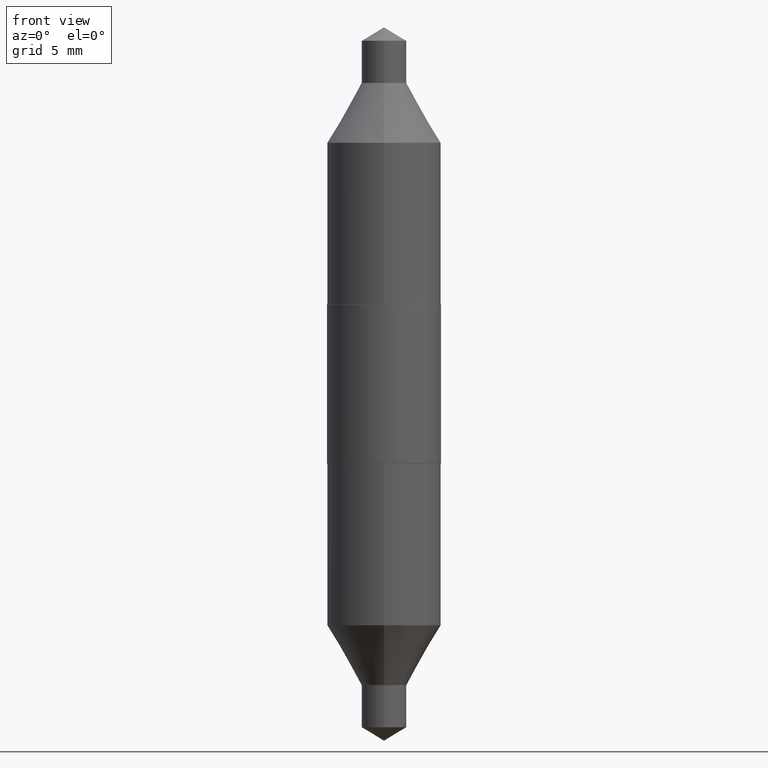
[diagram: clean part render]
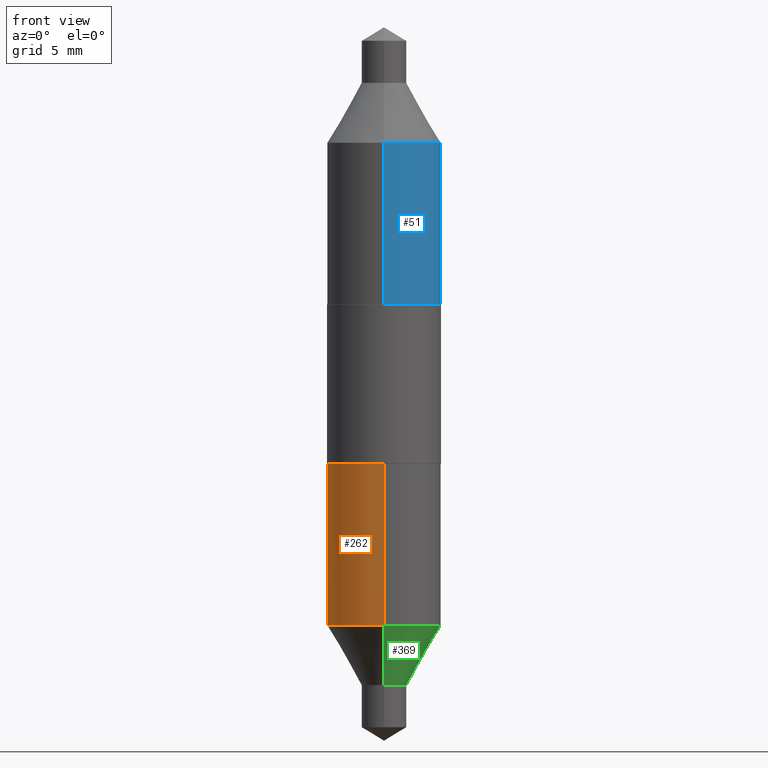
[diagram: same view with three faces highlighted in distinct colors, each labeled with its STEP entity id]
A machine part, front view with three faces highlighted in distinct colors.
Their STEP definitions:

[orange] entity #262 — the highlighted cylindrical surface (partial cylindrical patch) has radius 4.0005 mm, axis along (-0, 0, 1).
#1 = DIRECTION ( 'NONE',  ( -6.982962677686264344E-15, -1.000000000000000000, 3.469013325287952504E-15 ) ) ;
#10 = CARTESIAN_POINT ( 'NONE',  ( 1.119104808822163125E-15, 0.1574999999999992795, -0.2200000000000005285 ) ) ;
#11 = VERTEX_POINT ( 'NONE', #312 ) ;
#29 = DIRECTION ( 'NONE',  ( -2.432613365236688124E-29, 3.509891061967582916E-15, 1.000000000000000000 ) ) ;
#35 = VECTOR ( 'NONE', #477, 39.37007874015748143 ) ;
#57 = VERTEX_POINT ( 'NONE', #154 ) ;
#68 = CARTESIAN_POINT ( 'NONE',  ( 5.380031373607300737E-30, -7.681258945454921386E-16, -0.2200000000000000011 ) ) ;
#77 = AXIS2_PLACEMENT_3D ( 'NONE', #108, #490, #1 ) ;
#100 = FACE_OUTER_BOUND ( 'NONE', #597, .T. ) ;
#108 = CARTESIAN_POINT ( 'NONE',  ( 1.623165560573778972E-29, -2.333850207520305882E-15, -0.6660891478771698848 ) ) ;
#154 = CARTESIAN_POINT ( 'NONE',  ( -1.099816621735581367E-15, -0.1575000000000007505, -0.2199999999999994738 ) ) ;
#179 = EDGE_CURVE ( 'NONE', #617, #57, #627, .T. ) ;
#182 = ORIENTED_EDGE ( 'NONE', *, *, #307, .F. ) ;
#212 = DIRECTION ( 'NONE',  ( -2.432613365236688124E-29, 3.509891061967582916E-15, 1.000000000000000000 ) ) ;
#214 = CIRCLE ( 'NONE', #77, 0.1575000000000000289 ) ;
#223 = VERTEX_POINT ( 'NONE', #661 ) ;
#240 = ORIENTED_EDGE ( 'NONE', *, *, #403, .F. ) ;
#262 = ADVANCED_FACE ( 'NONE', ( #100 ), #313, .T. ) ;
#278 = DIRECTION ( 'NONE',  ( -6.982962677686264344E-15, -1.000000000000000000, 3.469013325287953293E-15 ) ) ;
#296 = ORIENTED_EDGE ( 'NONE', *, *, #536, .T. ) ;
#307 = EDGE_CURVE ( 'NONE', #223, #11, #504, .T. ) ;
#312 = CARTESIAN_POINT ( 'NONE',  ( 1.119104808822174169E-15, 0.1574999999999992517, -0.2200000000000005562 ) ) ;
#313 = CYLINDRICAL_SURFACE ( 'NONE', #662, 0.1575000000000000289 ) ;
#338 = DIRECTION ( 'NONE',  ( -2.432613365236688124E-29, 3.509891061967582916E-15, 1.000000000000000000 ) ) ;
#350 = ORIENTED_EDGE ( 'NONE', *, *, #179, .T. ) ;
#403 = EDGE_CURVE ( 'NONE', #11, #57, #608, .T. ) ;
#429 = CARTESIAN_POINT ( 'NONE',  ( -1.099816621735581564E-15, -0.1575000000000007783, -0.2199999999999994182 ) ) ;
#454 = AXIS2_PLACEMENT_3D ( 'NONE', #68, #29, #278 ) ;
#477 = DIRECTION ( 'NONE',  ( -2.432613365236688124E-29, 3.509891061967582916E-15, 1.000000000000000000 ) ) ;
#490 = DIRECTION ( 'NONE',  ( -2.432613365236688124E-29, 3.509891061967582916E-15, 1.000000000000000000 ) ) ;
#504 = LINE ( 'NONE', #10, #556 ) ;
#535 = CARTESIAN_POINT ( 'NONE',  ( 5.380031373607299336E-30, -7.681258945454920400E-16, -0.2199999999999999734 ) ) ;
#536 = EDGE_CURVE ( 'NONE', #223, #617, #214, .T. ) ;
#556 = VECTOR ( 'NONE', #338, 39.37007874015748143 ) ;
#597 = EDGE_LOOP ( 'NONE', ( #182, #296, #350, #240 ) ) ;
#601 = DIRECTION ( 'NONE',  ( -6.982962677686264344E-15, -1.000000000000000000, 3.469013325287952504E-15 ) ) ;
#608 = CIRCLE ( 'NONE', #454, 0.1575000000000000011 ) ;
#617 = VERTEX_POINT ( 'NONE', #688 ) ;
#627 = LINE ( 'NONE', #429, #35 ) ;
#661 = CARTESIAN_POINT ( 'NONE',  ( 1.119104808822168647E-15, 0.1574999999999976974, -0.6660891478771703289 ) ) ;
#662 = AXIS2_PLACEMENT_3D ( 'NONE', #535, #212, #601 ) ;
#688 = CARTESIAN_POINT ( 'NONE',  ( -1.099816621735570717E-15, -0.1575000000000023603, -0.6660891478771693297 ) ) ;

[blue] entity #51 — the highlighted cylindrical surface (partial cylindrical patch) has radius 4.0005 mm, axis along (0, -0, -1).
#5 = LINE ( 'NONE', #665, #392 ) ;
#40 = CYLINDRICAL_SURFACE ( 'NONE', #518, 0.1575000000000000289 ) ;
#51 = ADVANCED_FACE ( 'NONE', ( #427 ), #40, .T. ) ;
#59 = CARTESIAN_POINT ( 'NONE',  ( -1.099816621735592016E-15, -0.1574999999999992517, 0.2200000000000005562 ) ) ;
#89 = CARTESIAN_POINT ( 'NONE',  ( -5.380031373607300737E-30, 7.681258945454921386E-16, 0.2200000000000000011 ) ) ;
#93 = DIRECTION ( 'NONE',  ( -2.458324247133585070E-29, 3.473071615718708250E-15, 1.000000000000000000 ) ) ;
#97 = CARTESIAN_POINT ( 'NONE',  ( 1.080528434649005327E-15, 0.1575000000000007505, 0.2199999999999994738 ) ) ;
#233 = CARTESIAN_POINT ( 'NONE',  ( -1.634634905970335902E-29, 2.317425452117836237E-15, 0.6660891478771698848 ) ) ;
#236 = VERTEX_POINT ( 'NONE', #280 ) ;
#280 = CARTESIAN_POINT ( 'NONE',  ( 1.080528434649010849E-15, 0.1575000000000023603, 0.6660891478771693297 ) ) ;
#287 = EDGE_CURVE ( 'NONE', #236, #595, #5, .T. ) ;
#289 = EDGE_CURVE ( 'NONE', #294, #236, #412, .T. ) ;
#294 = VERTEX_POINT ( 'NONE', #658 ) ;
#302 = CARTESIAN_POINT ( 'NONE',  ( -1.099816621735592411E-15, -0.1574999999999992795, 0.2200000000000005285 ) ) ;
#304 = CIRCLE ( 'NONE', #684, 0.1575000000000000011 ) ;
#311 = DIRECTION ( 'NONE',  ( 2.458324247133584790E-29, -3.473071615718708644E-15, -1.000000000000000000 ) ) ;
#358 = ORIENTED_EDGE ( 'NONE', *, *, #287, .F. ) ;
#364 = DIRECTION ( 'NONE',  ( 2.458324247133585070E-29, -3.473071615718708250E-15, -1.000000000000000000 ) ) ;
#381 = ORIENTED_EDGE ( 'NONE', *, *, #569, .T. ) ;
#385 = EDGE_LOOP ( 'NONE', ( #358, #440, #697, #381 ) ) ;
#392 = VECTOR ( 'NONE', #542, 39.37007874015748143 ) ;
#412 = CIRCLE ( 'NONE', #435, 0.1575000000000000289 ) ;
#415 = VECTOR ( 'NONE', #311, 39.37007874015748143 ) ;
#427 = FACE_OUTER_BOUND ( 'NONE', #385, .T. ) ;
#435 = AXIS2_PLACEMENT_3D ( 'NONE', #233, #442, #667 ) ;
#440 = ORIENTED_EDGE ( 'NONE', *, *, #289, .F. ) ;
#442 = DIRECTION ( 'NONE',  ( -2.458324247133585070E-29, 3.473071615718708250E-15, 1.000000000000000000 ) ) ;
#509 = VERTEX_POINT ( 'NONE', #59 ) ;
#518 = AXIS2_PLACEMENT_3D ( 'NONE', #638, #364, #579 ) ;
#542 = DIRECTION ( 'NONE',  ( 2.458324247133584790E-29, -3.473071615718708644E-15, -1.000000000000000000 ) ) ;
#569 = EDGE_CURVE ( 'NONE', #509, #595, #304, .T. ) ;
#579 = DIRECTION ( 'NONE',  ( -6.982962677686264344E-15, -1.000000000000000000, 3.469013325287952504E-15 ) ) ;
#583 = DIRECTION ( 'NONE',  ( -6.982962677686264344E-15, -1.000000000000000000, 3.469013325287953293E-15 ) ) ;
#595 = VERTEX_POINT ( 'NONE', #97 ) ;
#599 = EDGE_CURVE ( 'NONE', #294, #509, #637, .T. ) ;
#637 = LINE ( 'NONE', #302, #415 ) ;
#638 = CARTESIAN_POINT ( 'NONE',  ( -5.380031373607299336E-30, 7.681258945454920400E-16, 0.2199999999999999734 ) ) ;
#658 = CARTESIAN_POINT ( 'NONE',  ( -1.099816621735603257E-15, -0.1574999999999976974, 0.6660891478771703289 ) ) ;
#665 = CARTESIAN_POINT ( 'NONE',  ( 1.080528434649011046E-15, 0.1575000000000007783, 0.2199999999999994182 ) ) ;
#667 = DIRECTION ( 'NONE',  ( -6.982962677686264344E-15, -1.000000000000000000, 3.469013325287952504E-15 ) ) ;
#684 = AXIS2_PLACEMENT_3D ( 'NONE', #89, #93, #583 ) ;
#697 = ORIENTED_EDGE ( 'NONE', *, *, #599, .T. ) ;

[green] entity #369 — the highlighted conical surface has half-angle 30 deg.
#6 = EDGE_LOOP ( 'NONE', ( #476, #217, #679, #511 ) ) ;
#15 = DIRECTION ( 'NONE',  ( -6.982962677686265922E-15, -1.000000000000000000, 4.406206441393972551E-15 ) ) ;
#36 = VECTOR ( 'NONE', #699, 39.37007874015748143 ) ;
#55 = VERTEX_POINT ( 'NONE', #525 ) ;
#58 = CARTESIAN_POINT ( 'NONE',  ( 2.025546210202964853E-29, -2.914424278938668661E-15, -0.8315000000000000169 ) ) ;
#101 = CARTESIAN_POINT ( 'NONE',  ( 4.405364961712852849E-16, 0.06199999999999709216, -0.8315000000000002389 ) ) ;
#112 = EDGE_CURVE ( 'NONE', #55, #591, #682, .T. ) ;
#116 = LINE ( 'NONE', #268, #36 ) ;
#141 = CARTESIAN_POINT ( 'NONE',  ( 2.025546210202964853E-29, -2.914424278938668661E-15, -0.8315000000000000169 ) ) ;
#206 = AXIS2_PLACEMENT_3D ( 'NONE', #562, #238, #560 ) ;
#217 = ORIENTED_EDGE ( 'NONE', *, *, #514, .T. ) ;
#223 = VERTEX_POINT ( 'NONE', #661 ) ;
#238 = DIRECTION ( 'NONE',  ( -2.432613365236688124E-29, 3.509891061967582916E-15, 1.000000000000000000 ) ) ;
#268 = CARTESIAN_POINT ( 'NONE',  ( 4.405364961712823759E-16, 0.06199999999999709216, -0.8315000000000002389 ) ) ;
#295 = CARTESIAN_POINT ( 'NONE',  ( -4.329436860165282505E-16, -0.06200000000000292083, -0.8314999999999996838 ) ) ;
#317 = EDGE_CURVE ( 'NONE', #55, #617, #670, .T. ) ;
#369 = ADVANCED_FACE ( 'NONE', ( #448 ), #527, .T. ) ;
#441 = DIRECTION ( 'NONE',  ( -2.432613365236688124E-29, 3.509891061967582916E-15, 1.000000000000000000 ) ) ;
#448 = FACE_OUTER_BOUND ( 'NONE', #6, .T. ) ;
#455 = DIRECTION ( 'NONE',  ( -6.982962677686265922E-15, -1.000000000000000000, 4.406206441393972551E-15 ) ) ;
#467 = EDGE_CURVE ( 'NONE', #617, #223, #576, .T. ) ;
#476 = ORIENTED_EDGE ( 'NONE', *, *, #112, .T. ) ;
#501 = VECTOR ( 'NONE', #614, 39.37007874015748143 ) ;
#511 = ORIENTED_EDGE ( 'NONE', *, *, #317, .F. ) ;
#512 = DIRECTION ( 'NONE',  ( -2.432613365236688124E-29, 3.509891061967582916E-15, 1.000000000000000000 ) ) ;
#514 = EDGE_CURVE ( 'NONE', #591, #223, #116, .T. ) ;
#525 = CARTESIAN_POINT ( 'NONE',  ( -4.329436860165282505E-16, -0.06200000000000292083, -0.8314999999999996838 ) ) ;
#527 = CONICAL_SURFACE ( 'NONE', #668, 0.06200000000000000649, 0.5235987755982927094 ) ;
#560 = DIRECTION ( 'NONE',  ( -6.982962677686264344E-15, -1.000000000000000000, 3.469013325287952504E-15 ) ) ;
#562 = CARTESIAN_POINT ( 'NONE',  ( 1.623165560573778972E-29, -2.333850207520305882E-15, -0.6660891478771698848 ) ) ;
#567 = AXIS2_PLACEMENT_3D ( 'NONE', #58, #441, #15 ) ;
#576 = CIRCLE ( 'NONE', #206, 0.1575000000000000289 ) ;
#591 = VERTEX_POINT ( 'NONE', #101 ) ;
#614 = DIRECTION ( 'NONE',  ( -3.491481338843117184E-15, -0.4999999999999916178, 0.8660254037844434816 ) ) ;
#617 = VERTEX_POINT ( 'NONE', #688 ) ;
#661 = CARTESIAN_POINT ( 'NONE',  ( 1.119104808822168647E-15, 0.1574999999999976974, -0.6660891478771703289 ) ) ;
#668 = AXIS2_PLACEMENT_3D ( 'NONE', #141, #512, #455 ) ;
#670 = LINE ( 'NONE', #295, #501 ) ;
#679 = ORIENTED_EDGE ( 'NONE', *, *, #467, .F. ) ;
#682 = CIRCLE ( 'NONE', #567, 0.06200000000000000649 ) ;
#688 = CARTESIAN_POINT ( 'NONE',  ( -1.099816621735570717E-15, -0.1575000000000023603, -0.6660891478771693297 ) ) ;
#699 = DIRECTION ( 'NONE',  ( 3.552713678800441765E-15, 0.4999999999999977240, 0.8660254037844398178 ) ) ;